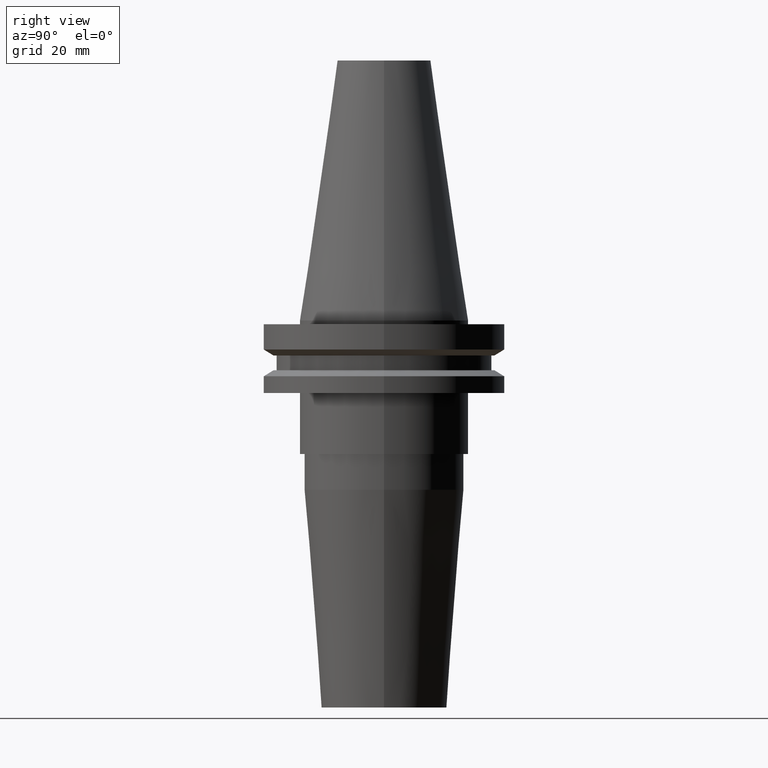
[diagram: clean part render]
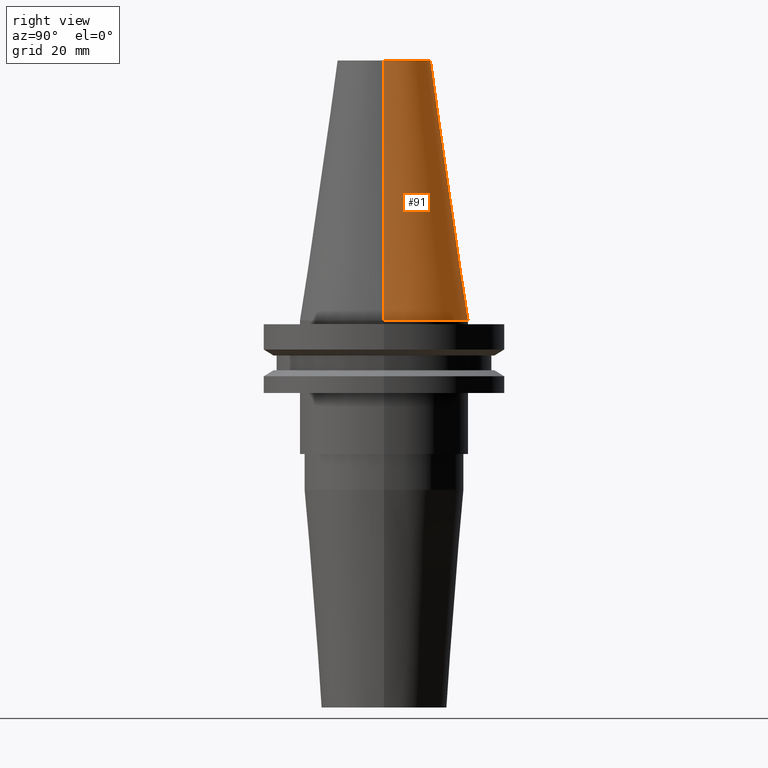
[diagram: same view with one face highlighted and labeled with its STEP entity id]
A machine part, right view. The second image highlights one B-rep face of the part: STEP entity #91.
In plain terms, the highlighted conical surface has half-angle 8.297 deg.
Its self-contained STEP definition (entity closure, byte-faithful):
#18 = VECTOR ( 'NONE', #352, 999.9999999999998863 ) ;
#30 = VERTEX_POINT ( 'NONE', #181 ) ;
#36 = EDGE_LOOP ( 'NONE', ( #631, #326, #496, #228 ) ) ;
#75 = CARTESIAN_POINT ( 'NONE',  ( -12.27178102086201150, 0.000000000000000000, 68.25000000000000000 ) ) ;
#79 = EDGE_CURVE ( 'NONE', #646, #300, #810, .T. ) ;
#91 = ADVANCED_FACE ( 'NONE', ( #649 ), #823, .T. ) ;
#140 = DIRECTION ( 'NONE',  ( 1.000000000000000000, 0.000000000000000000, 0.000000000000000000 ) ) ;
#163 = DIRECTION ( 'NONE',  ( 0.1443082272672999711, 1.767266086135276757E-17, -0.9895327864921755756 ) ) ;
#181 = CARTESIAN_POINT ( 'NONE',  ( 12.27178102086201150, 2.112318622904291439E-15, 68.25000000000000000 ) ) ;
#183 = VECTOR ( 'NONE', #163, 999.9999999999998863 ) ;
#188 = EDGE_CURVE ( 'NONE', #30, #628, #425, .T. ) ;
#191 = DIRECTION ( 'NONE',  ( 1.000000000000000000, 0.000000000000000000, 0.000000000000000000 ) ) ;
#195 = DIRECTION ( 'NONE',  ( 0.000000000000000000, 0.000000000000000000, -1.000000000000000000 ) ) ;
#228 = ORIENTED_EDGE ( 'NONE', *, *, #291, .F. ) ;
#257 = CARTESIAN_POINT ( 'NONE',  ( 0.000000000000000000, 0.000000000000000000, 0.000000000000000000 ) ) ;
#266 = DIRECTION ( 'NONE',  ( -1.000000000000000000, 0.000000000000000000, 0.000000000000000000 ) ) ;
#291 = EDGE_CURVE ( 'NONE', #628, #300, #484, .T. ) ;
#300 = VERTEX_POINT ( 'NONE', #500 ) ;
#326 = ORIENTED_EDGE ( 'NONE', *, *, #369, .T. ) ;
#352 = DIRECTION ( 'NONE',  ( -0.1443082272672999711, 0.000000000000000000, -0.9895327864921755756 ) ) ;
#369 = EDGE_CURVE ( 'NONE', #30, #646, #433, .T. ) ;
#409 = DIRECTION ( 'NONE',  ( -0.000000000000000000, -0.000000000000000000, 1.000000000000000000 ) ) ;
#425 = CIRCLE ( 'NONE', #830, 12.27178102086201150 ) ;
#433 = LINE ( 'NONE', #744, #183 ) ;
#445 = DIRECTION ( 'NONE',  ( -0.000000000000000000, -0.000000000000000000, 1.000000000000000000 ) ) ;
#484 = LINE ( 'NONE', #683, #18 ) ;
#496 = ORIENTED_EDGE ( 'NONE', *, *, #79, .T. ) ;
#500 = CARTESIAN_POINT ( 'NONE',  ( -22.22500000000000142, 0.000000000000000000, 0.000000000000000000 ) ) ;
#518 = CARTESIAN_POINT ( 'NONE',  ( 0.000000000000000000, 0.000000000000000000, 0.000000000000000000 ) ) ;
#608 = CARTESIAN_POINT ( 'NONE',  ( 0.000000000000000000, 0.000000000000000000, 68.25000000000000000 ) ) ;
#612 = AXIS2_PLACEMENT_3D ( 'NONE', #518, #195, #266 ) ;
#628 = VERTEX_POINT ( 'NONE', #75 ) ;
#631 = ORIENTED_EDGE ( 'NONE', *, *, #188, .F. ) ;
#646 = VERTEX_POINT ( 'NONE', #778 ) ;
#649 = FACE_OUTER_BOUND ( 'NONE', #36, .T. ) ;
#683 = CARTESIAN_POINT ( 'NONE',  ( -22.22500000000000142, 0.000000000000000000, 0.000000000000000000 ) ) ;
#744 = CARTESIAN_POINT ( 'NONE',  ( 22.22500000000000142, 2.721777511104992849E-15, 0.000000000000000000 ) ) ;
#778 = CARTESIAN_POINT ( 'NONE',  ( 22.22500000000000142, 2.721777511104992849E-15, 0.000000000000000000 ) ) ;
#795 = AXIS2_PLACEMENT_3D ( 'NONE', #257, #445, #191 ) ;
#810 = CIRCLE ( 'NONE', #795, 22.22500000000000142 ) ;
#823 = CONICAL_SURFACE ( 'NONE', #612, 22.22500000000000142, 0.1448138465474119174 ) ;
#830 = AXIS2_PLACEMENT_3D ( 'NONE', #608, #409, #140 ) ;